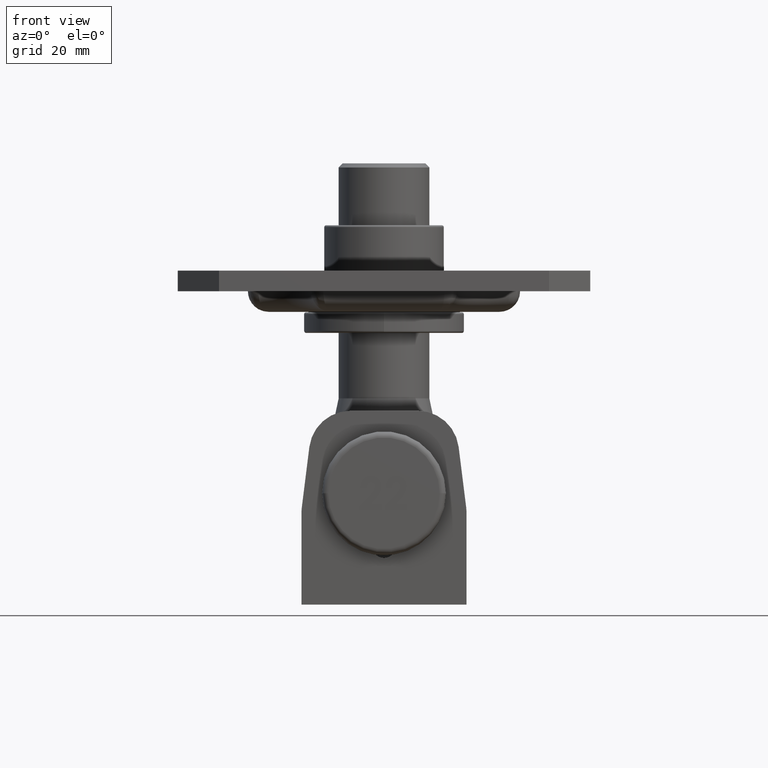
[diagram: clean part render]
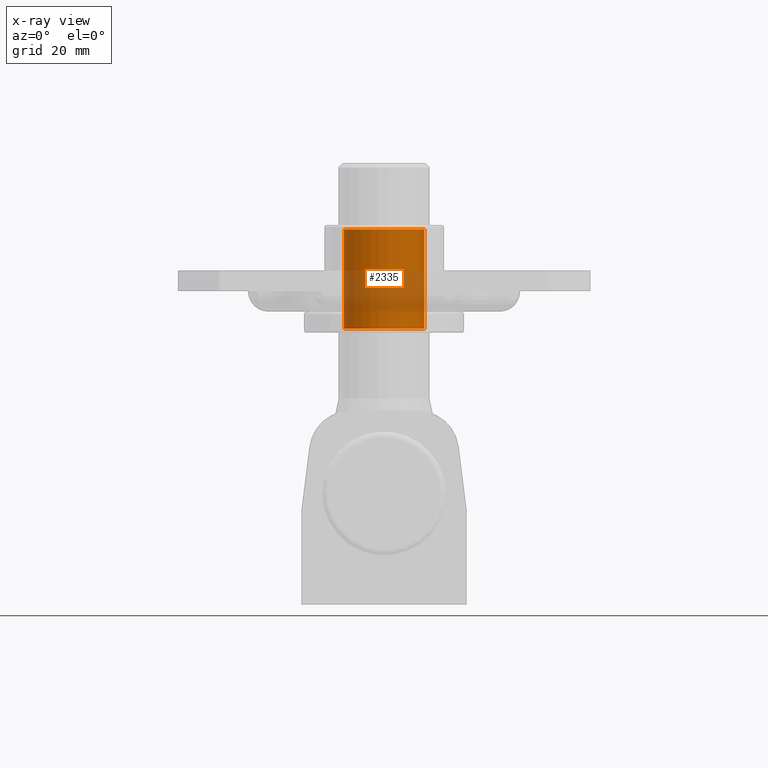
[diagram: x-ray — body ghosted, one internal face saturated and labeled with its STEP entity id]
A machine part, front view, then the same camera in x-ray: the body is ghosted and one INTERNAL B-rep face — a face not visible from any outside direction — is saturated and labeled: STEP entity #2335.
In plain terms, the highlighted cylindrical surface (partial cylindrical patch) has radius 9.75 mm, axis along (0, 0, -1).
Its self-contained STEP definition (entity closure, byte-faithful):
#575 = EDGE_CURVE ( 'NONE', #6185, #6738, #14665, .T. ) ;
#1409 = CARTESIAN_POINT ( 'NONE',  ( 9.749999999999991100, 7.703719777549121200E-031, -12.49999999999999600 ) ) ;
#1537 = CARTESIAN_POINT ( 'NONE',  ( 1.317774742903814800E-079, 7.703719777549121200E-031, 12.60000000000000000 ) ) ;
#2014 = CYLINDRICAL_SURFACE ( 'NONE', #13876, 9.750000000000216700 ) ;
#2030 = CARTESIAN_POINT ( 'NONE',  ( -9.749999999999991100, 1.194030629168669300E-015, -12.49999999999999600 ) ) ;
#2335 = ADVANCED_FACE ( 'NONE', ( #15483 ), #2014, .F. ) ;
#2741 = ORIENTED_EDGE ( 'NONE', *, *, #575, .F. ) ;
#3153 = DIRECTION ( 'NONE',  ( 0.0000000000000000000, 0.0000000000000000000, 1.000000000000000000 ) ) ;
#3279 = CARTESIAN_POINT ( 'NONE',  ( 1.317774742903814800E-079, 7.703719777549121200E-031, 11.59999999999996400 ) ) ;
#4165 = CARTESIAN_POINT ( 'NONE',  ( -9.750000000000216700, 1.194030629168696700E-015, 12.60000000000000000 ) ) ;
#4292 = DIRECTION ( 'NONE',  ( 1.000000000000000000, 0.0000000000000000000, 0.0000000000000000000 ) ) ;
#4781 = AXIS2_PLACEMENT_3D ( 'NONE', #3279, #3153, #15450 ) ;
#5097 = EDGE_CURVE ( 'NONE', #5113, #6738, #15765, .T. ) ;
#5113 = VERTEX_POINT ( 'NONE', #12745 ) ;
#6185 = VERTEX_POINT ( 'NONE', #1409 ) ;
#6226 = VECTOR ( 'NONE', #17420, 1000.000000000000000 ) ;
#6738 = VERTEX_POINT ( 'NONE', #10973 ) ;
#7822 = VECTOR ( 'NONE', #8158, 1000.000000000000000 ) ;
#7917 = EDGE_LOOP ( 'NONE', ( #11514, #11579, #10809, #2741 ) ) ;
#7988 = CARTESIAN_POINT ( 'NONE',  ( 9.750000000000216700, 7.703719777549121200E-031, 12.60000000000000000 ) ) ;
#8158 = DIRECTION ( 'NONE',  ( 0.0000000000000000000, 0.0000000000000000000, 1.000000000000000000 ) ) ;
#10535 = CIRCLE ( 'NONE', #15744, 9.750000000000216700 ) ;
#10809 = ORIENTED_EDGE ( 'NONE', *, *, #5097, .T. ) ;
#10973 = CARTESIAN_POINT ( 'NONE',  ( 9.750000000000216700, 7.703719777549121200E-031, 11.59999999999996400 ) ) ;
#11514 = ORIENTED_EDGE ( 'NONE', *, *, #17083, .T. ) ;
#11579 = ORIENTED_EDGE ( 'NONE', *, *, #16893, .T. ) ;
#12242 = DIRECTION ( 'NONE',  ( 0.0000000000000000000, 0.0000000000000000000, 1.000000000000000000 ) ) ;
#12745 = CARTESIAN_POINT ( 'NONE',  ( -9.749999999999991100, 1.194030629168669300E-015, 11.59999999999996400 ) ) ;
#13876 = AXIS2_PLACEMENT_3D ( 'NONE', #1537, #12242, #4292 ) ;
#13997 = DIRECTION ( 'NONE',  ( -1.000000000000000000, 0.0000000000000000000, 0.0000000000000000000 ) ) ;
#14121 = VERTEX_POINT ( 'NONE', #2030 ) ;
#14665 = LINE ( 'NONE', #7988, #6226 ) ;
#15210 = DIRECTION ( 'NONE',  ( 0.0000000000000000000, 0.0000000000000000000, -1.000000000000000000 ) ) ;
#15407 = LINE ( 'NONE', #4165, #7822 ) ;
#15450 = DIRECTION ( 'NONE',  ( 1.000000000000000000, 0.0000000000000000000, 0.0000000000000000000 ) ) ;
#15483 = FACE_OUTER_BOUND ( 'NONE', #7917, .T. ) ;
#15744 = AXIS2_PLACEMENT_3D ( 'NONE', #16685, #15210, #13997 ) ;
#15765 = CIRCLE ( 'NONE', #4781, 9.750000000000216700 ) ;
#16685 = CARTESIAN_POINT ( 'NONE',  ( 1.317774742903814800E-079, 7.703719777549121200E-031, -12.49999999999999600 ) ) ;
#16893 = EDGE_CURVE ( 'NONE', #14121, #5113, #15407, .T. ) ;
#17083 = EDGE_CURVE ( 'NONE', #6185, #14121, #10535, .T. ) ;
#17420 = DIRECTION ( 'NONE',  ( 0.0000000000000000000, 0.0000000000000000000, 1.000000000000000000 ) ) ;